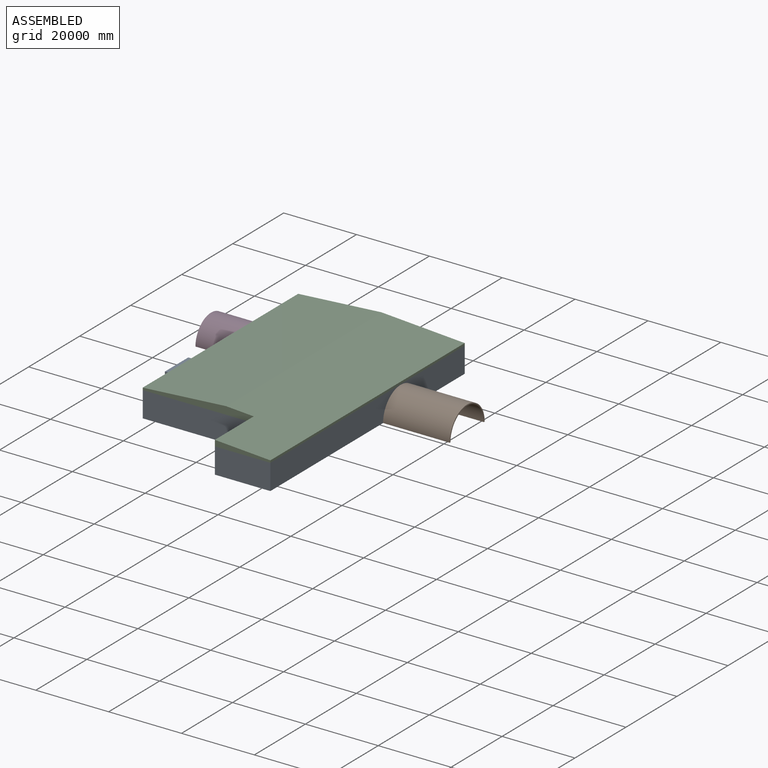
[diagram: assembled view]
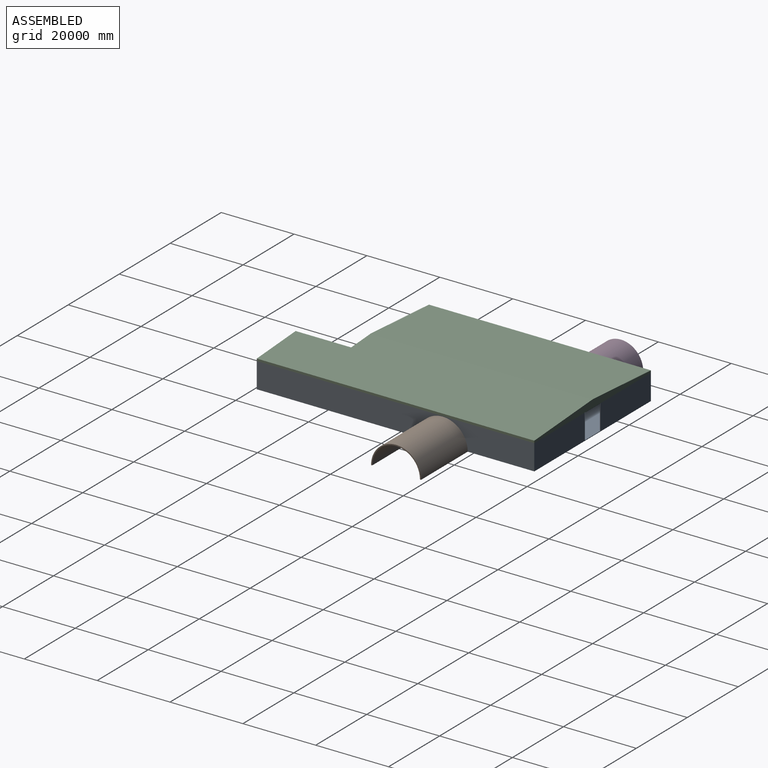
[diagram: assembled view, second angle]
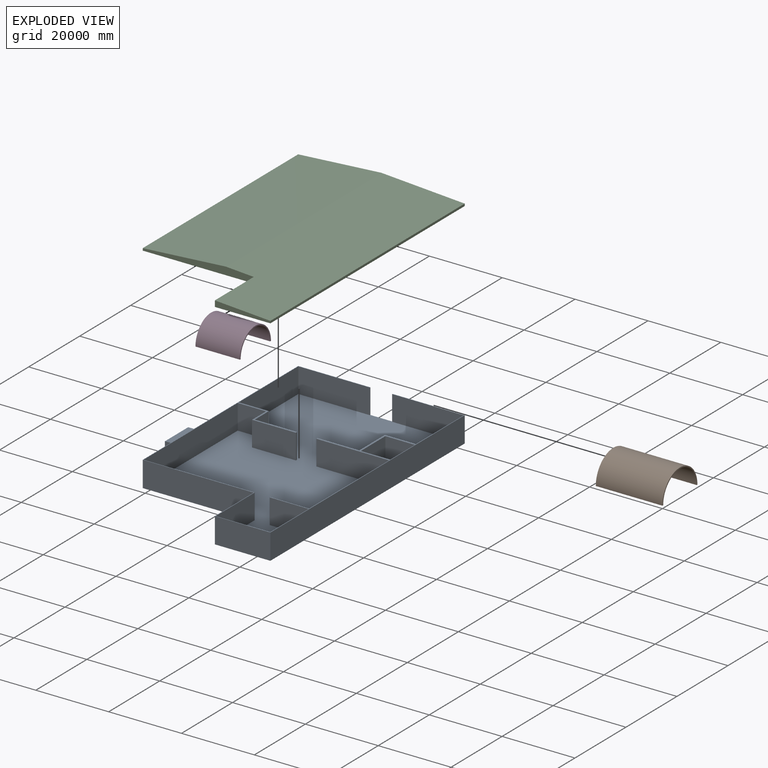
[diagram: exploded view]
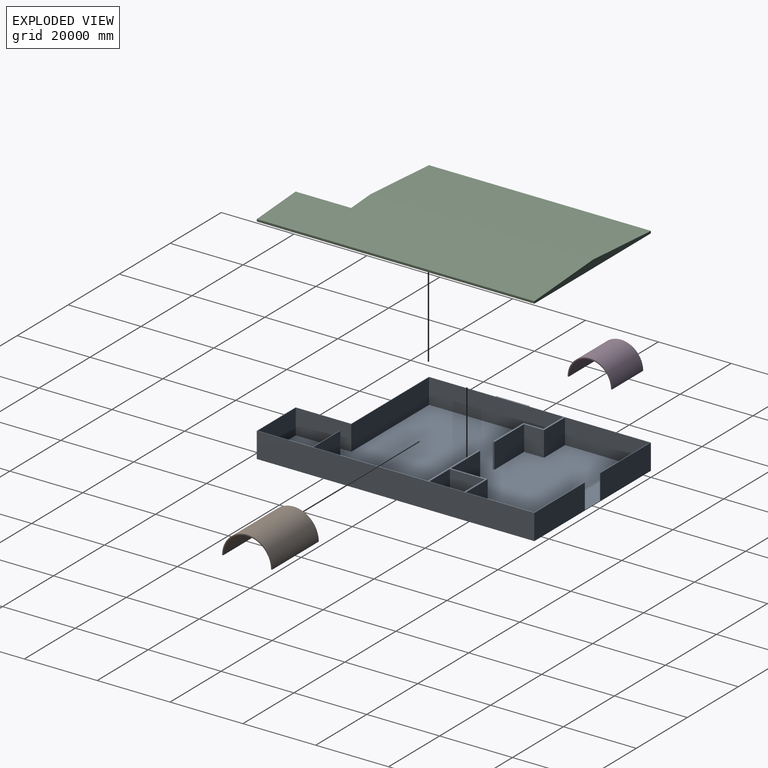
[diagram: exploded view, second angle]
ASSEMBLY  parts=4 mates=3
PART A: 45 faces, bbox 50292x76200x7010.4 mm
  f0: plane 19659.6x6858mm, normal (0,-1,0), area 134825536.8mm2, adj f1,f2,f7,f43
  f1: plane 76047.6x45415.2mm, normal (0,0,1), area 2875047153.1mm2, adj f0,f2,f5,f6,f12,f19,f20,f21
  f2: plane 23317.2x6858mm, normal (1,0,0), area 159909357.6mm2, adj f0,f1,f7,f38
  f3: plane 9601.2x8077.2mm, normal (0,0,1), area 77550812.6mm2, adj f4,f28,f29,f30
  f4: plane 9601.2x6858mm, normal (-1,0,0), area 65845029.6mm2, adj f3,f7,f28,f30
  f5: plane 31394.4x6858mm, normal (-1,0,0), area 215302795.2mm2, adj f1,f7,f25,f35
  f6: plane 15087.6x6858mm, normal (-1,0,0), area 103470760.8mm2, adj f1,f7,f23,f27
  f7: plane 76200x45720mm, normal (0,0,1), area 66750834.2mm2, adj f0,f2,f4,f5,f6,f8,f10,f11
  f8: plane 60960x7010.4mm, normal (-1,0,0), area 385547616mm2, adj f7,f9,f11,f12,f15,f16,f17
  f9: plane 76200x50292mm, normal (0,0,-1), area 3061155168mm2, adj f8,f10,f11,f12,f13,f14,f15,f17
  f10: plane 76200x7010.4mm, normal (1,0,0), area 534192480mm2, adj f7,f9,f12,f14
  f11: plane 30480x7010.4mm, normal (0,-1,0), area 213676992mm2, adj f7,f8,f9,f13
  f12: plane 45720x7010.4mm, normal (0,1,0), area 278709120mm2, adj f1,f7,f8,f9,f10,f43,f44
  f13: plane 15240x7010.4mm, normal (-1,0,0), area 106838496mm2, adj f7,f9,f11,f14
  f14: plane 15240x7010.4mm, normal (0,-1,0), area 106838496mm2, adj f7,f9,f10,f13
  f15: plane 4572x4572mm, normal (0,-1,0), area 20903184mm2, adj f8,f9,f16,f18
  f16: plane 9144x4572mm, normal (0,0,1), area 41806368mm2, adj f8,f15,f17,f18
  f17: plane 4572x4572mm, normal (0,1,0), area 20903184mm2, adj f8,f9,f16,f18
  f18: plane 9144x4572mm, normal (-1,0,0), area 41806368mm2, adj f9,f15,f16,f17
  f19: plane 19659.6x6858mm, normal (0,-1,0), area 134825536.8mm2, adj f1,f7,f24,f44
  f20: plane 36880.8x6858mm, normal (1,0,0), area 252928526.4mm2, adj f1,f7,f21,f39
  f21: plane 30480x6858mm, normal (0,1,0), area 209031840mm2, adj f1,f7,f20,f22
  f22: plane 15240x6858mm, normal (1,0,0), area 104515920mm2, adj f1,f7,f21,f23
  f23: plane 14935.2x6858mm, normal (0,1,0), area 102425601.6mm2, adj f1,f6,f7,f22
  f24: plane 18745.2x6858mm, normal (-1,0,0), area 128554581.6mm2, adj f1,f7,f19,f31
  f25: plane 10668x6858mm, normal (0,1,0), area 73161144mm2, adj f1,f5,f7,f26
  f26: plane 6858x152.4mm, normal (-1,0,0), area 1045159.2mm2, adj f1,f7,f25,f27
  f27: plane 10668x6858mm, normal (0,-1,0), area 73161144mm2, adj f1,f6,f7,f26
  f28: plane 8077.2x6858mm, normal (0,1,0), area 55393437.6mm2, adj f3,f4,f7,f29
  f29: plane 9601.2x6858mm, normal (1,0,0), area 65845029.6mm2, adj f3,f7,f28,f30
  f30: plane 8077.2x6858mm, normal (0,-1,0), area 55393437.6mm2, adj f3,f4,f7,f29
  f31: plane 8534.4x6858mm, normal (0,1,0), area 58528915.2mm2, adj f1,f7,f24,f32
  f32: plane 10058.4x6858mm, normal (-1,0,0), area 68980507.2mm2, adj f1,f7,f31,f33
  f33: plane 11430x6858mm, normal (0,1,0), area 78386940mm2, adj f1,f7,f32,f34
  f34: plane 6858x457.2mm, normal (-1,0,0), area 3135477.6mm2, adj f1,f7,f33,f35
  f35: plane 19964.4x6858mm, normal (0,-1,0), area 136915855.2mm2, adj f1,f5,f7,f34
  f36: plane 11582.4x6858mm, normal (0,1,0), area 79432099.2mm2, adj f1,f7,f37,f42
  f37: plane 6858x5486.4mm, normal (1,0,0), area 37625731.2mm2, adj f1,f7,f36,f38
  f38: plane 8229.6x6858mm, normal (0,1,0), area 56438596.8mm2, adj f1,f2,f7,f37
  f39: plane 7772.4x6858mm, normal (0,-1,0), area 53303119.2mm2, adj f1,f7,f20,f40
  f40: plane 6858x5486.4mm, normal (-1,0,0), area 37625731.2mm2, adj f1,f7,f39,f41
  f41: plane 12039.6x6858mm, normal (0,-1,0), area 82567576.8mm2, adj f1,f7,f40,f42
  f42: plane 6858x457.2mm, normal (1,0,0), area 3135477.6mm2, adj f1,f7,f36,f41
  f43: plane 6858x152.4mm, normal (1,0,0), area 1045159.2mm2, adj f0,f1,f7,f12
  f44: plane 6858x152.4mm, normal (-1,0,0), area 1045159.2mm2, adj f1,f7,f12,f19
PART B: 6 faces, bbox 18288x13716x6858 mm
  f0: plane 18288x304.8mm, normal (0,0,-1), area 5574182.4mm2, adj f1,f3,f4,f5
  f1: cylinder r=6858mm len=18288mm, axis (-1,0,0), area 394015735.7mm2, adj f0,f2,f4,f5
  f2: plane 18288x304.8mm, normal (0,0,-1), area 5574182.4mm2, adj f1,f3,f4,f5
  f3: cylinder r=6553.2mm len=18288mm, axis (-1,0,0), area 376503925.3mm2, adj f0,f2,f4,f5
  f4: plane 13716x6858mm, normal (1,0,0), area 6420997.2mm2, adj f0,f1,f2,f3
  f5: plane 13716x6858mm, normal (-1,0,0), area 6420997.2mm2, adj f0,f1,f2,f3
PART C: 9 faces, bbox 45720x76200x2133.6 mm
  f0: plane 76200x45720mm, normal (0,0,-1), area 3019348800mm2, adj f1,f2,f3,f6,f7,f8
  f1: plane 60960x609.6mm, normal (-1,0,0), area 37161216mm2, adj f0,f5,f6,f7
  f2: plane 15240x1625.6mm, normal (0,-1,0), area 17032224.1mm2, adj f0,f3,f4,f8
  f3: plane 76200x609.6mm, normal (1,0,0), area 46451520mm2, adj f0,f2,f4,f6
  f4: plane 76200x22860mm, normal (0.07,0,1), area 1629412090.6mm2, adj f2,f3,f5,f6,f7,f8
  f5: plane 60960x22860mm, normal (-0.07,0,1), area 1396638934.8mm2, adj f1,f4,f6,f7
  f6: plane 45720x2133.6mm, normal (0,1,0), area 62709552.2mm2, adj f0,f1,f3,f4,f5
  f7: plane 30480x2133.6mm, normal (0,-1,0), area 45677328mm2, adj f0,f1,f4,f5,f8
  f8: plane 15240x1625.6mm, normal (-1,0,0), area 24774144mm2, adj f0,f2,f4,f7
PART D: 6 faces, bbox 12192x12192x6096 mm
  f0: plane 12192x304.8mm, normal (0,0,-1), area 3716121.6mm2, adj f1,f3,f4,f5
  f1: cylinder r=6096mm len=12192mm, axis (1,0,0), area 233490806.4mm2, adj f0,f2,f4,f5
  f2: plane 12192x304.8mm, normal (0,0,-1), area 3716121.6mm2, adj f1,f3,f4,f5
  f3: cylinder r=5791.2mm len=12192mm, axis (1,0,0), area 221816266mm2, adj f0,f2,f4,f5
  f4: plane 12192x6096mm, normal (-1,0,0), area 5691338.4mm2, adj f0,f1,f2,f3
  f5: plane 12192x6096mm, normal (1,0,0), area 5691338.4mm2, adj f0,f1,f2,f3
PLACE A at identity fixed
PLACE B at identity
PLACE C at identity
PLACE D at identity
MATE fastened A.f7 <-> C.f0  axis (0,0,1) through (0,-60960,7010.4)mm
MATE fastened A.f10 <-> B.f5  axis (1,0,0) through (45720,0,0)mm
MATE fastened A.f8 <-> D.f5  axis (-1,0,0) through (0,0,0)mm
